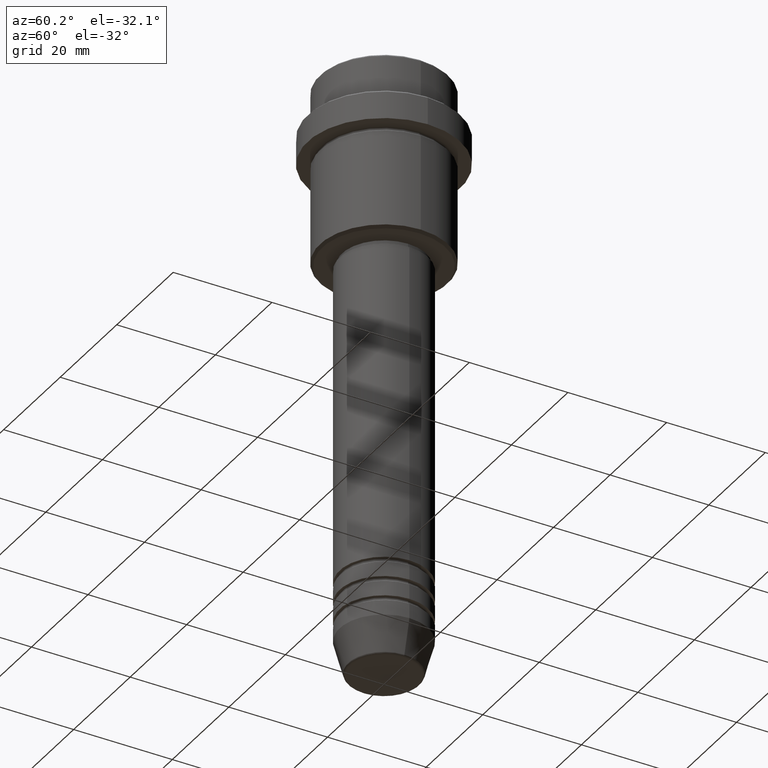
[diagram: clean part render]
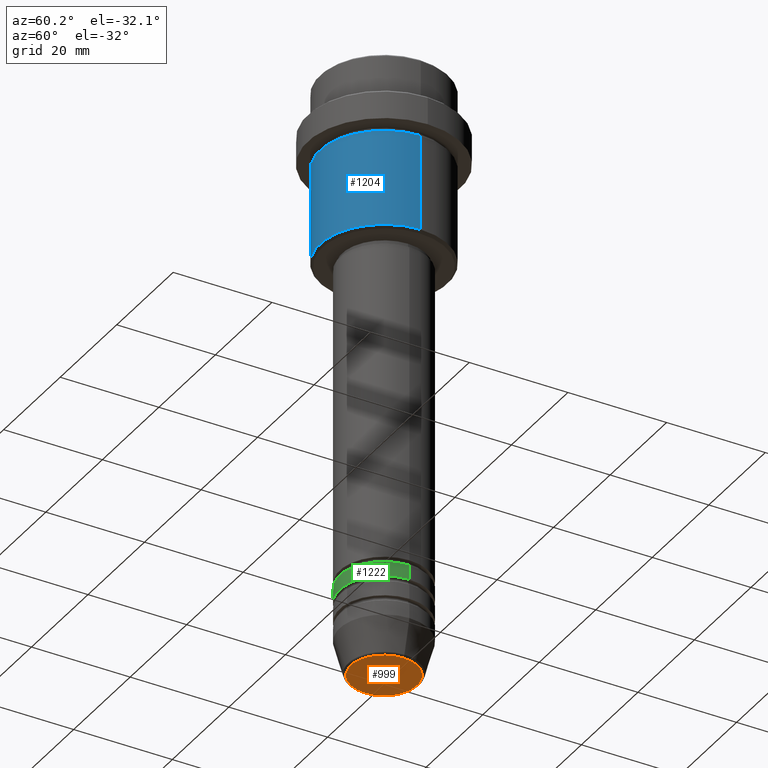
[diagram: same view with three faces highlighted in distinct colors, each labeled with its STEP entity id]
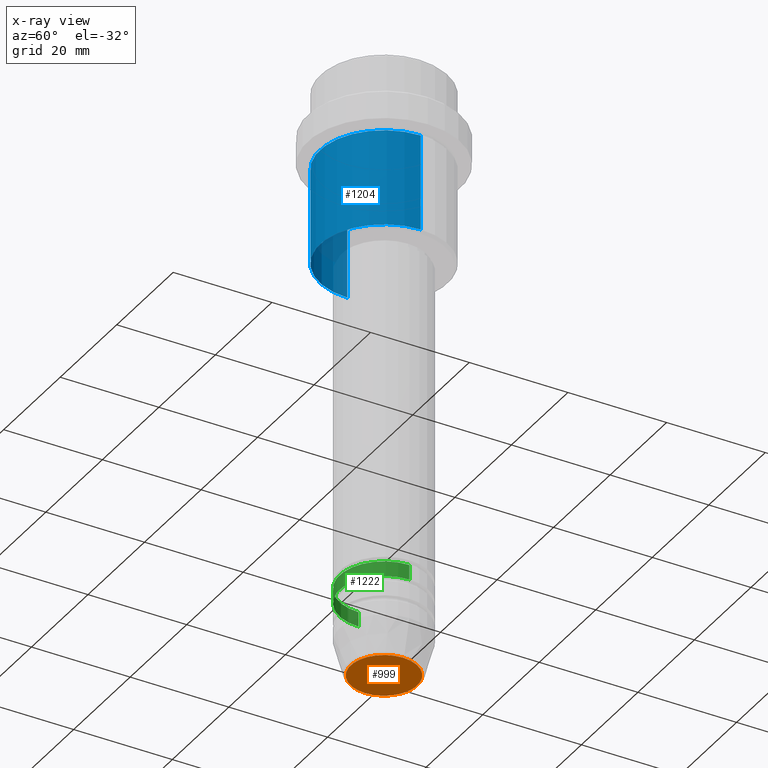
[diagram: x-ray of the same camera — body ghosted, the three highlighted faces saturated]
A machine part, auxiliary view with three faces highlighted in distinct colors.
The next image is the same camera in x-ray (body ghosted, the three faces saturated) — at least one of them is partly hidden behind the body in this view.
Their STEP definitions:

[orange] entity #999 — the highlighted planar face has unit normal (0, -0, 1).
#121 = VERTEX_POINT ( 'NONE', #945 ) ;
#162 = EDGE_CURVE ( 'NONE', #121, #684, #1193, .T. ) ;
#190 = CARTESIAN_POINT ( 'NONE',  ( 0.000000000000000000, 0.000000000000000000, -121.0000000000000000 ) ) ;
#196 = CARTESIAN_POINT ( 'NONE',  ( 6.740692158992658278, 0.000000000000000000, -121.0000000000000000 ) ) ;
#282 = DIRECTION ( 'NONE',  ( 0.000000000000000000, 0.000000000000000000, -1.000000000000000000 ) ) ;
#286 = DIRECTION ( 'NONE',  ( 1.000000000000000000, 0.000000000000000000, 0.000000000000000000 ) ) ;
#389 = AXIS2_PLACEMENT_3D ( 'NONE', #1181, #872, #1300 ) ;
#557 = EDGE_LOOP ( 'NONE', ( #1324, #1161 ) ) ;
#618 = FACE_OUTER_BOUND ( 'NONE', #557, .T. ) ;
#634 = CARTESIAN_POINT ( 'NONE',  ( 0.000000000000000000, 0.000000000000000000, -121.0000000000000000 ) ) ;
#684 = VERTEX_POINT ( 'NONE', #196 ) ;
#872 = DIRECTION ( 'NONE',  ( 0.000000000000000000, 0.000000000000000000, -1.000000000000000000 ) ) ;
#945 = CARTESIAN_POINT ( 'NONE',  ( -6.740692158992658278, 8.550696569392689626E-16, -121.0000000000000000 ) ) ;
#999 = ADVANCED_FACE ( 'NONE', ( #618 ), #1157, .F. ) ;
#1046 = CIRCLE ( 'NONE', #389, 6.740692158992658278 ) ;
#1132 = AXIS2_PLACEMENT_3D ( 'NONE', #190, #282, #1390 ) ;
#1157 = PLANE ( 'NONE',  #1158 ) ;
#1158 = AXIS2_PLACEMENT_3D ( 'NONE', #634, #1259, #286 ) ;
#1161 = ORIENTED_EDGE ( 'NONE', *, *, #162, .T. ) ;
#1181 = CARTESIAN_POINT ( 'NONE',  ( 0.000000000000000000, 0.000000000000000000, -121.0000000000000000 ) ) ;
#1185 = EDGE_CURVE ( 'NONE', #684, #121, #1046, .T. ) ;
#1193 = CIRCLE ( 'NONE', #1132, 6.740692158992658278 ) ;
#1259 = DIRECTION ( 'NONE',  ( 0.000000000000000000, -0.000000000000000000, 1.000000000000000000 ) ) ;
#1300 = DIRECTION ( 'NONE',  ( 1.000000000000000000, 0.000000000000000000, 0.000000000000000000 ) ) ;
#1324 = ORIENTED_EDGE ( 'NONE', *, *, #1185, .T. ) ;
#1390 = DIRECTION ( 'NONE',  ( 1.000000000000000000, 0.000000000000000000, 0.000000000000000000 ) ) ;

[blue] entity #1204 — the highlighted cylindrical surface (partial cylindrical patch) has radius 13 mm, axis along (-0, -0, 1).
#82 = CARTESIAN_POINT ( 'NONE',  ( 13.00000000000000000, 0.000000000000000000, -16.00000000000000000 ) ) ;
#91 = DIRECTION ( 'NONE',  ( -1.000000000000000000, 0.000000000000000000, 0.000000000000000000 ) ) ;
#163 = CARTESIAN_POINT ( 'NONE',  ( -13.00000000000000000, 1.592040838891559095E-15, -35.49999999999999289 ) ) ;
#183 = EDGE_CURVE ( 'NONE', #1292, #1382, #588, .T. ) ;
#249 = AXIS2_PLACEMENT_3D ( 'NONE', #1276, #308, #303 ) ;
#303 = DIRECTION ( 'NONE',  ( 1.000000000000000000, 0.000000000000000000, 0.000000000000000000 ) ) ;
#308 = DIRECTION ( 'NONE',  ( -0.000000000000000000, -0.000000000000000000, 1.000000000000000000 ) ) ;
#312 = CARTESIAN_POINT ( 'NONE',  ( 0.000000000000000000, 0.000000000000000000, 0.000000000000000000 ) ) ;
#346 = EDGE_CURVE ( 'NONE', #1382, #1008, #1108, .T. ) ;
#355 = CARTESIAN_POINT ( 'NONE',  ( 13.00000000000000000, 0.000000000000000000, -35.49999999999999289 ) ) ;
#356 = VECTOR ( 'NONE', #1001, 1000.000000000000000 ) ;
#404 = AXIS2_PLACEMENT_3D ( 'NONE', #627, #1064, #91 ) ;
#474 = VECTOR ( 'NONE', #829, 1000.000000000000000 ) ;
#555 = EDGE_CURVE ( 'NONE', #1292, #1328, #1165, .T. ) ;
#560 = FACE_OUTER_BOUND ( 'NONE', #565, .T. ) ;
#565 = EDGE_LOOP ( 'NONE', ( #763, #1348, #731, #994 ) ) ;
#572 = CARTESIAN_POINT ( 'NONE',  ( 13.00000000000000000, 0.000000000000000000, 0.000000000000000000 ) ) ;
#587 = CARTESIAN_POINT ( 'NONE',  ( -13.00000000000000000, 1.592040838891559095E-15, -16.00000000000000000 ) ) ;
#588 = CIRCLE ( 'NONE', #404, 13.00000000000000000 ) ;
#612 = CIRCLE ( 'NONE', #249, 13.00000000000000000 ) ;
#627 = CARTESIAN_POINT ( 'NONE',  ( 0.000000000000000000, 0.000000000000000000, -35.49999999999999289 ) ) ;
#656 = DIRECTION ( 'NONE',  ( 1.000000000000000000, 0.000000000000000000, 0.000000000000000000 ) ) ;
#664 = DIRECTION ( 'NONE',  ( -0.000000000000000000, -0.000000000000000000, 1.000000000000000000 ) ) ;
#731 = ORIENTED_EDGE ( 'NONE', *, *, #346, .T. ) ;
#735 = EDGE_CURVE ( 'NONE', #1328, #1008, #612, .T. ) ;
#763 = ORIENTED_EDGE ( 'NONE', *, *, #555, .F. ) ;
#829 = DIRECTION ( 'NONE',  ( -0.000000000000000000, -0.000000000000000000, 1.000000000000000000 ) ) ;
#920 = CARTESIAN_POINT ( 'NONE',  ( -13.00000000000000000, 1.592040838891559095E-15, 0.000000000000000000 ) ) ;
#983 = CYLINDRICAL_SURFACE ( 'NONE', #1341, 13.00000000000000000 ) ;
#994 = ORIENTED_EDGE ( 'NONE', *, *, #735, .F. ) ;
#1001 = DIRECTION ( 'NONE',  ( -0.000000000000000000, -0.000000000000000000, 1.000000000000000000 ) ) ;
#1008 = VERTEX_POINT ( 'NONE', #82 ) ;
#1064 = DIRECTION ( 'NONE',  ( -0.000000000000000000, -0.000000000000000000, 1.000000000000000000 ) ) ;
#1108 = LINE ( 'NONE', #572, #356 ) ;
#1165 = LINE ( 'NONE', #920, #474 ) ;
#1204 = ADVANCED_FACE ( 'NONE', ( #560 ), #983, .T. ) ;
#1276 = CARTESIAN_POINT ( 'NONE',  ( 0.000000000000000000, 0.000000000000000000, -16.00000000000000000 ) ) ;
#1292 = VERTEX_POINT ( 'NONE', #163 ) ;
#1328 = VERTEX_POINT ( 'NONE', #587 ) ;
#1341 = AXIS2_PLACEMENT_3D ( 'NONE', #312, #664, #656 ) ;
#1348 = ORIENTED_EDGE ( 'NONE', *, *, #183, .T. ) ;
#1382 = VERTEX_POINT ( 'NONE', #355 ) ;

[green] entity #1222 — the highlighted cylindrical surface (partial cylindrical patch) has radius 9 mm, axis along (-0, -0, 1).
#21 = AXIS2_PLACEMENT_3D ( 'NONE', #1210, #1077, #646 ) ;
#66 = CIRCLE ( 'NONE', #1016, 9.000000000000000000 ) ;
#83 = CARTESIAN_POINT ( 'NONE',  ( -9.000000000000000000, 1.102182119232617714E-15, -102.9999999999999005 ) ) ;
#123 = CYLINDRICAL_SURFACE ( 'NONE', #21, 9.000000000000000000 ) ;
#144 = CARTESIAN_POINT ( 'NONE',  ( 9.000000000000000000, 0.000000000000000000, -105.9999999999999005 ) ) ;
#185 = VERTEX_POINT ( 'NONE', #83 ) ;
#198 = AXIS2_PLACEMENT_3D ( 'NONE', #1029, #1160, #1360 ) ;
#244 = VERTEX_POINT ( 'NONE', #753 ) ;
#328 = FACE_OUTER_BOUND ( 'NONE', #915, .T. ) ;
#437 = VERTEX_POINT ( 'NONE', #144 ) ;
#441 = EDGE_CURVE ( 'NONE', #437, #244, #1323, .T. ) ;
#466 = CARTESIAN_POINT ( 'NONE',  ( -9.000000000000000000, 1.102182119232617714E-15, 0.000000000000000000 ) ) ;
#492 = DIRECTION ( 'NONE',  ( -0.000000000000000000, -0.000000000000000000, 1.000000000000000000 ) ) ;
#564 = DIRECTION ( 'NONE',  ( -0.000000000000000000, -0.000000000000000000, 1.000000000000000000 ) ) ;
#576 = ORIENTED_EDGE ( 'NONE', *, *, #441, .T. ) ;
#578 = EDGE_CURVE ( 'NONE', #185, #244, #653, .T. ) ;
#595 = ORIENTED_EDGE ( 'NONE', *, *, #1355, .F. ) ;
#617 = VECTOR ( 'NONE', #908, 1000.000000000000000 ) ;
#646 = DIRECTION ( 'NONE',  ( 1.000000000000000000, 0.000000000000000000, 0.000000000000000000 ) ) ;
#653 = CIRCLE ( 'NONE', #198, 9.000000000000000000 ) ;
#658 = EDGE_CURVE ( 'NONE', #1141, #437, #66, .T. ) ;
#705 = CARTESIAN_POINT ( 'NONE',  ( 0.000000000000000000, 0.000000000000000000, -105.9999999999999005 ) ) ;
#753 = CARTESIAN_POINT ( 'NONE',  ( 9.000000000000000000, 0.000000000000000000, -102.9999999999999005 ) ) ;
#759 = CARTESIAN_POINT ( 'NONE',  ( -9.000000000000000000, 1.102182119232617714E-15, -105.9999999999999005 ) ) ;
#824 = ORIENTED_EDGE ( 'NONE', *, *, #658, .T. ) ;
#883 = CARTESIAN_POINT ( 'NONE',  ( 9.000000000000000000, 0.000000000000000000, 0.000000000000000000 ) ) ;
#908 = DIRECTION ( 'NONE',  ( -0.000000000000000000, -0.000000000000000000, 1.000000000000000000 ) ) ;
#915 = EDGE_LOOP ( 'NONE', ( #595, #824, #576, #1362 ) ) ;
#916 = LINE ( 'NONE', #466, #617 ) ;
#926 = DIRECTION ( 'NONE',  ( 1.000000000000000000, 0.000000000000000000, 0.000000000000000000 ) ) ;
#1016 = AXIS2_PLACEMENT_3D ( 'NONE', #705, #492, #926 ) ;
#1029 = CARTESIAN_POINT ( 'NONE',  ( 0.000000000000000000, 0.000000000000000000, -102.9999999999999005 ) ) ;
#1077 = DIRECTION ( 'NONE',  ( -0.000000000000000000, -0.000000000000000000, 1.000000000000000000 ) ) ;
#1141 = VERTEX_POINT ( 'NONE', #759 ) ;
#1160 = DIRECTION ( 'NONE',  ( -0.000000000000000000, -0.000000000000000000, 1.000000000000000000 ) ) ;
#1210 = CARTESIAN_POINT ( 'NONE',  ( 0.000000000000000000, 0.000000000000000000, 0.000000000000000000 ) ) ;
#1222 = ADVANCED_FACE ( 'NONE', ( #328 ), #123, .T. ) ;
#1246 = VECTOR ( 'NONE', #564, 1000.000000000000000 ) ;
#1323 = LINE ( 'NONE', #883, #1246 ) ;
#1355 = EDGE_CURVE ( 'NONE', #1141, #185, #916, .T. ) ;
#1360 = DIRECTION ( 'NONE',  ( 1.000000000000000000, 0.000000000000000000, 0.000000000000000000 ) ) ;
#1362 = ORIENTED_EDGE ( 'NONE', *, *, #578, .F. ) ;